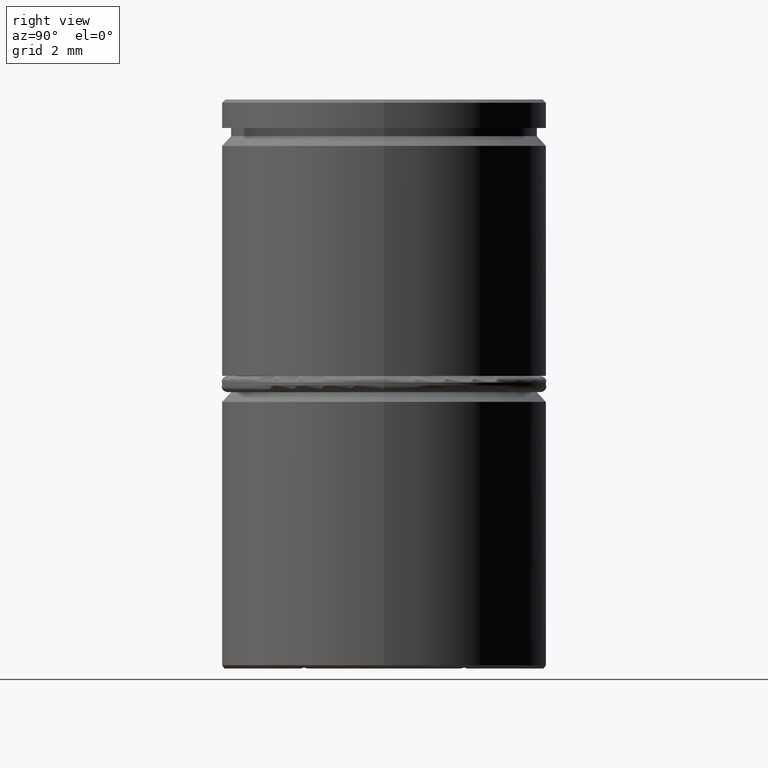
[diagram: clean part render]
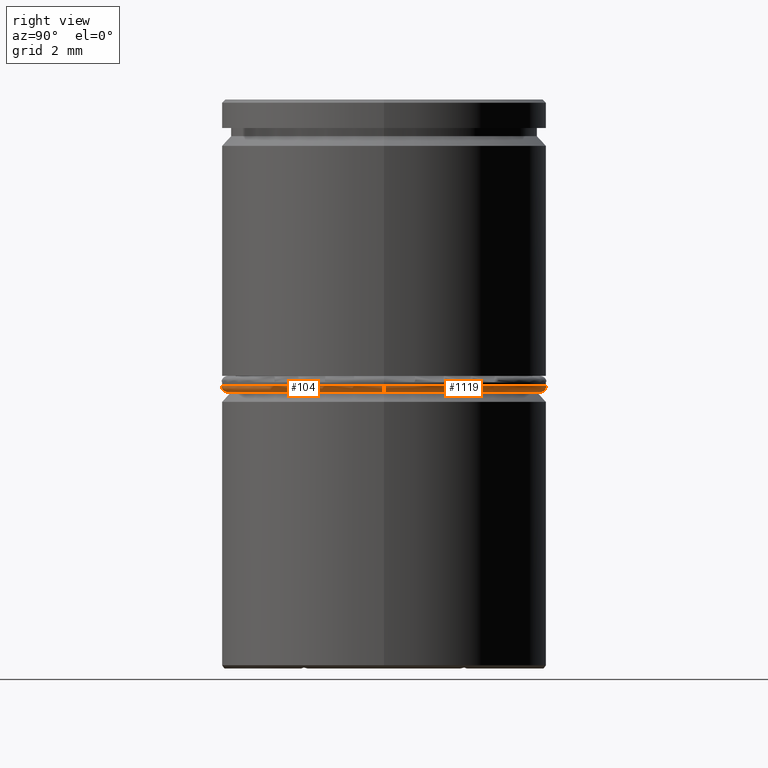
[diagram: same view with one multi-face feature highlighted, each face labeled with its STEP entity id]
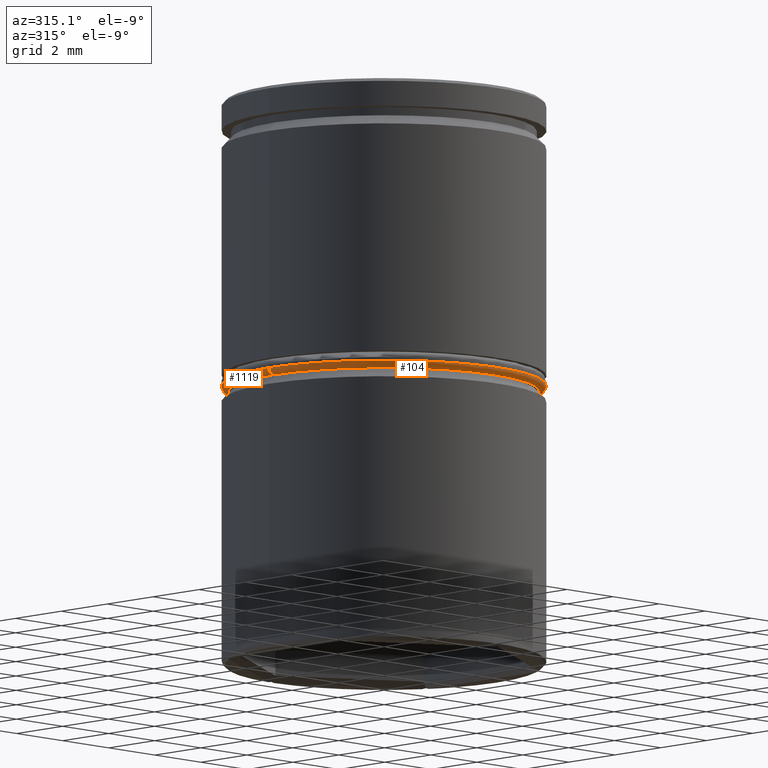
[diagram: same view with one multi-face feature highlighted, each face labeled with its STEP entity id]
A machine part, right view. The highlighted faces form ONE feature: a constant-radius fillet chain: 2 tangent blend faces with common blend radius 0.2 mm. The faces share edges in the B-rep.
A second angle (auxiliary view) of the same feature is appended — it is thin or edge-on in the first view.
Their STEP definitions:
[1] entity #104 (Torus):
#2 = DIRECTION ( 'NONE',  ( -0.000000000000000000, -0.000000000000000000, -1.000000000000000000 ) ) ;
#24 = DIRECTION ( 'NONE',  ( 1.000000000000000000, 0.000000000000000000, 0.000000000000000000 ) ) ;
#93 = ORIENTED_EDGE ( 'NONE', *, *, #1298, .F. ) ;
#104 = ADVANCED_FACE ( 'NONE', ( #1194 ), #777, .T. ) ;
#139 = CARTESIAN_POINT ( 'NONE',  ( 0.000000000000000000, 0.000000000000000000, -8.800000000000000711 ) ) ;
#189 = AXIS2_PLACEMENT_3D ( 'NONE', #139, #981, #446 ) ;
#191 = DIRECTION ( 'NONE',  ( -1.000000000000000000, 1.224646799147353454E-16, 0.000000000000000000 ) ) ;
#198 = DIRECTION ( 'NONE',  ( 1.224646799147353207E-16, 1.000000000000000000, -0.000000000000000000 ) ) ;
#216 = VERTEX_POINT ( 'NONE', #1178 ) ;
#274 = CARTESIAN_POINT ( 'NONE',  ( -4.800000000000000711, 6.000769315822031726E-16, -9.000000000000001776 ) ) ;
#276 = DIRECTION ( 'NONE',  ( 0.000000000000000000, -1.000000000000000000, 0.000000000000000000 ) ) ;
#307 = CIRCLE ( 'NONE', #754, 5.000000000000000000 ) ;
#321 = DIRECTION ( 'NONE',  ( 0.000000000000000000, 0.000000000000000000, 1.000000000000000000 ) ) ;
#364 = EDGE_CURVE ( 'NONE', #216, #1342, #726, .T. ) ;
#378 = CARTESIAN_POINT ( 'NONE',  ( 4.800000000000000711, 0.000000000000000000, -8.800000000000000711 ) ) ;
#421 = CARTESIAN_POINT ( 'NONE',  ( 0.000000000000000000, 0.000000000000000000, -9.000000000000001776 ) ) ;
#446 = DIRECTION ( 'NONE',  ( 1.000000000000000000, 0.000000000000000000, 0.000000000000000000 ) ) ;
#479 = EDGE_LOOP ( 'NONE', ( #712, #674, #659, #93 ) ) ;
#548 = CIRCLE ( 'NONE', #805, 0.2000000000000005107 ) ;
#631 = CARTESIAN_POINT ( 'NONE',  ( 5.000000000000000000, 0.000000000000000000, -8.800000000000000711 ) ) ;
#659 = ORIENTED_EDGE ( 'NONE', *, *, #821, .T. ) ;
#674 = ORIENTED_EDGE ( 'NONE', *, *, #364, .F. ) ;
#687 = CARTESIAN_POINT ( 'NONE',  ( -4.800000000000000711, 5.878304635907295197E-16, -8.800000000000000711 ) ) ;
#712 = ORIENTED_EDGE ( 'NONE', *, *, #1002, .F. ) ;
#726 = CIRCLE ( 'NONE', #1276, 4.800000000000000711 ) ;
#754 = AXIS2_PLACEMENT_3D ( 'NONE', #965, #321, #24 ) ;
#777 = TOROIDAL_SURFACE ( 'NONE', #189, 4.800000000000000711, 0.2000000000000000111 ) ;
#805 = AXIS2_PLACEMENT_3D ( 'NONE', #378, #276, #905 ) ;
#821 = EDGE_CURVE ( 'NONE', #216, #924, #548, .T. ) ;
#905 = DIRECTION ( 'NONE',  ( 0.000000000000000000, 0.000000000000000000, -1.000000000000000000 ) ) ;
#924 = VERTEX_POINT ( 'NONE', #631 ) ;
#937 = VERTEX_POINT ( 'NONE', #1225 ) ;
#965 = CARTESIAN_POINT ( 'NONE',  ( 0.000000000000000000, 0.000000000000000000, -8.800000000000000711 ) ) ;
#981 = DIRECTION ( 'NONE',  ( 0.000000000000000000, 0.000000000000000000, 1.000000000000000000 ) ) ;
#1002 = EDGE_CURVE ( 'NONE', #1342, #937, #1356, .T. ) ;
#1115 = AXIS2_PLACEMENT_3D ( 'NONE', #687, #198, #191 ) ;
#1178 = CARTESIAN_POINT ( 'NONE',  ( 4.800000000000000711, 0.000000000000000000, -9.000000000000001776 ) ) ;
#1184 = DIRECTION ( 'NONE',  ( 1.000000000000000000, 0.000000000000000000, 0.000000000000000000 ) ) ;
#1194 = FACE_OUTER_BOUND ( 'NONE', #479, .T. ) ;
#1225 = CARTESIAN_POINT ( 'NONE',  ( -5.000000000000000000, 6.123233995736766282E-16, -8.800000000000000711 ) ) ;
#1276 = AXIS2_PLACEMENT_3D ( 'NONE', #421, #2, #1184 ) ;
#1298 = EDGE_CURVE ( 'NONE', #937, #924, #307, .T. ) ;
#1342 = VERTEX_POINT ( 'NONE', #274 ) ;
#1356 = CIRCLE ( 'NONE', #1115, 0.1999999999999996503 ) ;
[2] entity #1119 (Torus):
#4 = DIRECTION ( 'NONE',  ( 1.000000000000000000, 0.000000000000000000, 0.000000000000000000 ) ) ;
#95 = AXIS2_PLACEMENT_3D ( 'NONE', #1059, #953, #458 ) ;
#163 = CIRCLE ( 'NONE', #412, 4.800000000000000711 ) ;
#191 = DIRECTION ( 'NONE',  ( -1.000000000000000000, 1.224646799147353454E-16, 0.000000000000000000 ) ) ;
#198 = DIRECTION ( 'NONE',  ( 1.224646799147353207E-16, 1.000000000000000000, -0.000000000000000000 ) ) ;
#212 = ORIENTED_EDGE ( 'NONE', *, *, #733, .F. ) ;
#216 = VERTEX_POINT ( 'NONE', #1178 ) ;
#227 = AXIS2_PLACEMENT_3D ( 'NONE', #1223, #564, #1098 ) ;
#274 = CARTESIAN_POINT ( 'NONE',  ( -4.800000000000000711, 6.000769315822031726E-16, -9.000000000000001776 ) ) ;
#276 = DIRECTION ( 'NONE',  ( 0.000000000000000000, -1.000000000000000000, 0.000000000000000000 ) ) ;
#290 = EDGE_LOOP ( 'NONE', ( #212, #1374, #1171, #506 ) ) ;
#306 = CARTESIAN_POINT ( 'NONE',  ( 0.000000000000000000, 0.000000000000000000, -9.000000000000001776 ) ) ;
#378 = CARTESIAN_POINT ( 'NONE',  ( 4.800000000000000711, 0.000000000000000000, -8.800000000000000711 ) ) ;
#412 = AXIS2_PLACEMENT_3D ( 'NONE', #306, #836, #4 ) ;
#458 = DIRECTION ( 'NONE',  ( 1.000000000000000000, 0.000000000000000000, 0.000000000000000000 ) ) ;
#506 = ORIENTED_EDGE ( 'NONE', *, *, #821, .F. ) ;
#548 = CIRCLE ( 'NONE', #805, 0.2000000000000005107 ) ;
#564 = DIRECTION ( 'NONE',  ( 0.000000000000000000, 0.000000000000000000, 1.000000000000000000 ) ) ;
#631 = CARTESIAN_POINT ( 'NONE',  ( 5.000000000000000000, 0.000000000000000000, -8.800000000000000711 ) ) ;
#636 = TOROIDAL_SURFACE ( 'NONE', #227, 4.800000000000000711, 0.2000000000000000111 ) ;
#654 = CIRCLE ( 'NONE', #95, 5.000000000000000000 ) ;
#687 = CARTESIAN_POINT ( 'NONE',  ( -4.800000000000000711, 5.878304635907295197E-16, -8.800000000000000711 ) ) ;
#733 = EDGE_CURVE ( 'NONE', #1342, #216, #163, .T. ) ;
#741 = EDGE_CURVE ( 'NONE', #924, #937, #654, .T. ) ;
#805 = AXIS2_PLACEMENT_3D ( 'NONE', #378, #276, #905 ) ;
#820 = FACE_OUTER_BOUND ( 'NONE', #290, .T. ) ;
#821 = EDGE_CURVE ( 'NONE', #216, #924, #548, .T. ) ;
#836 = DIRECTION ( 'NONE',  ( -0.000000000000000000, -0.000000000000000000, -1.000000000000000000 ) ) ;
#905 = DIRECTION ( 'NONE',  ( 0.000000000000000000, 0.000000000000000000, -1.000000000000000000 ) ) ;
#924 = VERTEX_POINT ( 'NONE', #631 ) ;
#937 = VERTEX_POINT ( 'NONE', #1225 ) ;
#953 = DIRECTION ( 'NONE',  ( 0.000000000000000000, 0.000000000000000000, 1.000000000000000000 ) ) ;
#1002 = EDGE_CURVE ( 'NONE', #1342, #937, #1356, .T. ) ;
#1059 = CARTESIAN_POINT ( 'NONE',  ( 0.000000000000000000, 0.000000000000000000, -8.800000000000000711 ) ) ;
#1098 = DIRECTION ( 'NONE',  ( 1.000000000000000000, 0.000000000000000000, 0.000000000000000000 ) ) ;
#1115 = AXIS2_PLACEMENT_3D ( 'NONE', #687, #198, #191 ) ;
#1119 = ADVANCED_FACE ( 'NONE', ( #820 ), #636, .T. ) ;
#1171 = ORIENTED_EDGE ( 'NONE', *, *, #741, .F. ) ;
#1178 = CARTESIAN_POINT ( 'NONE',  ( 4.800000000000000711, 0.000000000000000000, -9.000000000000001776 ) ) ;
#1223 = CARTESIAN_POINT ( 'NONE',  ( 0.000000000000000000, 0.000000000000000000, -8.800000000000000711 ) ) ;
#1225 = CARTESIAN_POINT ( 'NONE',  ( -5.000000000000000000, 6.123233995736766282E-16, -8.800000000000000711 ) ) ;
#1342 = VERTEX_POINT ( 'NONE', #274 ) ;
#1356 = CIRCLE ( 'NONE', #1115, 0.1999999999999996503 ) ;
#1374 = ORIENTED_EDGE ( 'NONE', *, *, #1002, .T. ) ;